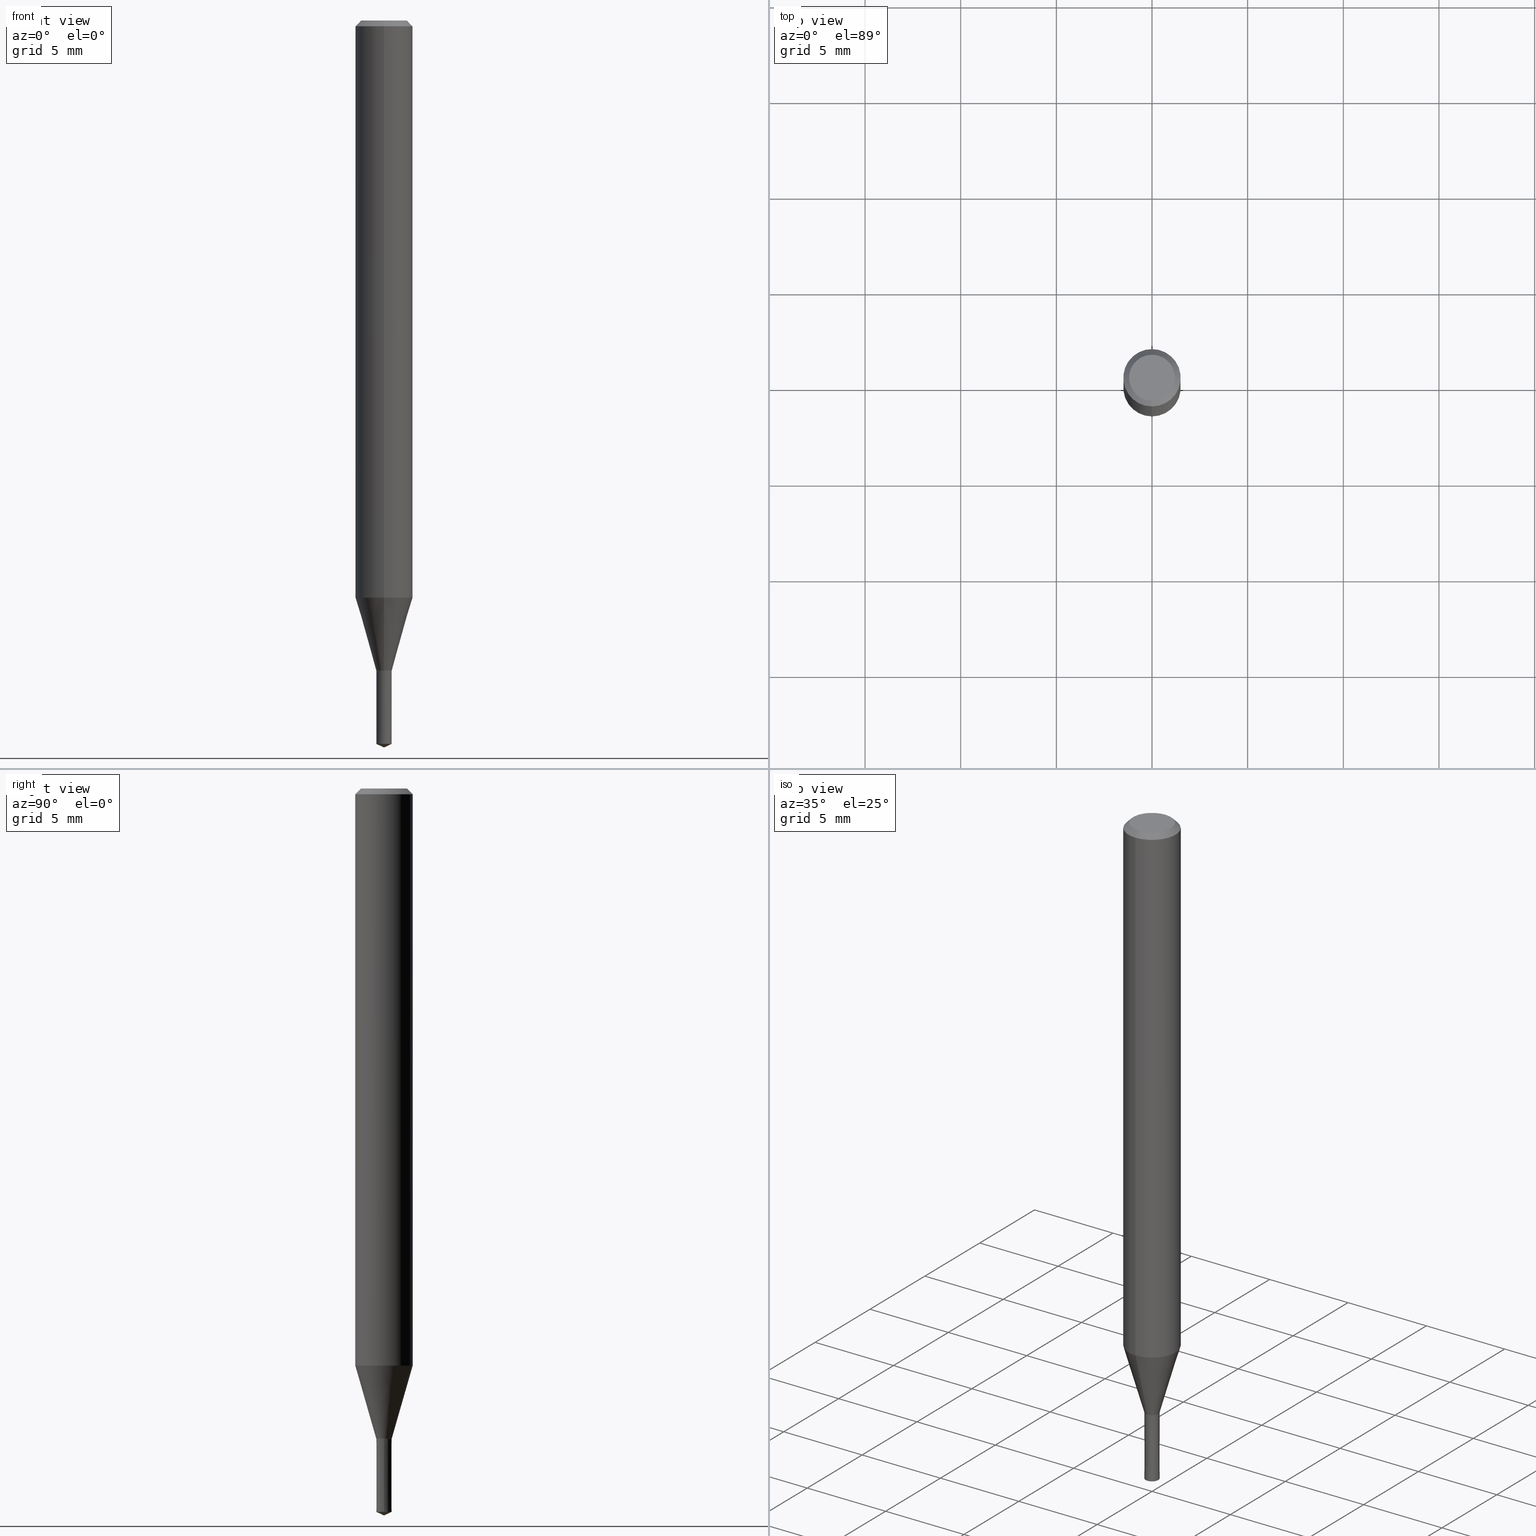
[diagram: canonical four-view strip — front | top / right | iso, engineering-drawing reading convention]
A machine part, canonical four-view strip (front | top / right | iso — engineering-drawing reading convention). The complete STEP part file that produces these views, byte-faithful:
ISO-10303-21;
HEADER;
FILE_DESCRIPTION(('no description'),'unknown implementation level');
FILE_NAME('UTDSX2080-040-Huellk.stp','  ',('CIMSOURCE GmbH'),('CADClick - KiM GmbH - www.kimweb.de'),'unknown preprocess','ACIS','unknown authorization');
FILE_SCHEMA(('automotive_design'));
ENDSEC;
DATA;
#1=MECHANICAL_DESIGN_GEOMETRIC_PRESENTATION_REPRESENTATION(' ',(#14,#15,#16,#17,#18,#19,#20,#21,#22,#23,#24,#25,#26,#27,#28,#29,#30,#31,#32,#33,#34,#35,#36,#37,#38,#39,#40,#41,#42,#43,#44,#45,#46,#47,#48,#49,#50,#51,#52,#53,#54,#55,#56,#57,#58,#59,#60,#61,#62,#63,#64,#65,#66,#67,#68,#69,#70,#71),#10);
#2=PRODUCT_DEFINITION_CONTEXT('',#72,'design');
#3=APPLICATION_PROTOCOL_DEFINITION('INTERNATIONAL STANDARD','automotive_design',1994,#72);
#4=PRODUCT_CATEGORY_RELATIONSHIP('NONE','NONE',#73,#74);
#5=SHAPE_DEFINITION_REPRESENTATION(#75,#76);
#6=PRODUCT_DEFINITION_CONTEXT('',#77,'design');
#7=APPLICATION_PROTOCOL_DEFINITION('INTERNATIONAL STANDARD','automotive_design',1994,#77);
#8=PRODUCT_CATEGORY_RELATIONSHIP('NONE','NONE',#78,#79);
#9=SHAPE_DEFINITION_REPRESENTATION(#80,#81);
#10= (GEOMETRIC_REPRESENTATION_CONTEXT(3)GLOBAL_UNCERTAINTY_ASSIGNED_CONTEXT((#84))GLOBAL_UNIT_ASSIGNED_CONTEXT((#86,#87,#88))REPRESENTATION_CONTEXT('NONE','WORKSPACE'));
#14=STYLED_ITEM('',(#90),#91);
#15=STYLED_ITEM('',(#92),#93);
#16=STYLED_ITEM('',(#94),#95);
#17=STYLED_ITEM('',(#96),#97);
#18=STYLED_ITEM('',(#98),#99);
#19=STYLED_ITEM('',(#100),#101);
#20=STYLED_ITEM('',(#102),#103);
#21=STYLED_ITEM('',(#104),#105);
#22=STYLED_ITEM('',(#106),#107);
#23=STYLED_ITEM('',(#108),#109);
#24=STYLED_ITEM('',(#110),#111);
#25=STYLED_ITEM('',(#112),#113);
#26=STYLED_ITEM('',(#114),#115);
#27=STYLED_ITEM('',(#116),#117);
#28=STYLED_ITEM('',(#118),#119);
#29=STYLED_ITEM('',(#120),#121);
#30=STYLED_ITEM('',(#122),#123);
#31=STYLED_ITEM('',(#124),#125);
#32=STYLED_ITEM('',(#126),#127);
#33=STYLED_ITEM('',(#128),#129);
#34=STYLED_ITEM('',(#130),#131);
#35=STYLED_ITEM('',(#132),#133);
#36=STYLED_ITEM('',(#134),#135);
#37=STYLED_ITEM('',(#136),#137);
#38=STYLED_ITEM('',(#138),#139);
#39=STYLED_ITEM('',(#140),#141);
#40=STYLED_ITEM('',(#142),#143);
#41=STYLED_ITEM('',(#144),#145);
#42=STYLED_ITEM('',(#146),#147);
#43=STYLED_ITEM('',(#148),#149);
#44=STYLED_ITEM('',(#150),#151);
#45=STYLED_ITEM('',(#152),#153);
#46=STYLED_ITEM('',(#154),#155);
#47=STYLED_ITEM('',(#156),#157);
#48=STYLED_ITEM('',(#158),#159);
#49=STYLED_ITEM('',(#160),#161);
#50=STYLED_ITEM('',(#162),#163);
#51=STYLED_ITEM('',(#164),#165);
#52=STYLED_ITEM('',(#166),#167);
#53=STYLED_ITEM('',(#168),#169);
#54=STYLED_ITEM('',(#170),#171);
#55=STYLED_ITEM('',(#172),#173);
#56=STYLED_ITEM('',(#174),#175);
#57=STYLED_ITEM('',(#176),#177);
#58=STYLED_ITEM('',(#178),#179);
#59=STYLED_ITEM('',(#180),#181);
#60=STYLED_ITEM('',(#182),#183);
#61=STYLED_ITEM('',(#184),#185);
#62=STYLED_ITEM('',(#186),#187);
#63=STYLED_ITEM('',(#188),#189);
#64=STYLED_ITEM('',(#190),#191);
#65=STYLED_ITEM('',(#192),#193);
#66=STYLED_ITEM('',(#194),#195);
#67=STYLED_ITEM('',(#196),#197);
#68=STYLED_ITEM('',(#198),#199);
#69=STYLED_ITEM('',(#200),#201);
#70=STYLED_ITEM('',(#202),#203);
#71=STYLED_ITEM('',(#204),#205);
#72=APPLICATION_CONTEXT(' ');
#73=PRODUCT_CATEGORY('part','NONE');
#74=PRODUCT_RELATED_PRODUCT_CATEGORY('detail',' ',(#206));
#75=PRODUCT_DEFINITION_SHAPE('NONE','NONE',#207);
#76=ADVANCED_BREP_SHAPE_REPRESENTATION('1',(#161,#208),#10);
#77=APPLICATION_CONTEXT(' ');
#78=PRODUCT_CATEGORY('part','NONE');
#79=PRODUCT_RELATED_PRODUCT_CATEGORY('detail',' ',(#209));
#80=PRODUCT_DEFINITION_SHAPE('NONE','NONE',#210);
#81=ADVANCED_BREP_SHAPE_REPRESENTATION('2',(#189,#211),#10);
#84=UNCERTAINTY_MEASURE_WITH_UNIT(LENGTH_MEASURE(1.0E-006),#86,'','');
#86= (CONVERSION_BASED_UNIT('MILLIMETRE',#214)LENGTH_UNIT()NAMED_UNIT(#217));
#87= (NAMED_UNIT(#219)PLANE_ANGLE_UNIT()SI_UNIT($,.RADIAN.));
#88= (NAMED_UNIT(#219)SOLID_ANGLE_UNIT()SI_UNIT($,.STERADIAN.));
#90=PRESENTATION_STYLE_ASSIGNMENT((#225));
#91=VERTEX_POINT('',#226);
#92=PRESENTATION_STYLE_ASSIGNMENT((#227));
#93=EDGE_CURVE('',#143,#147,#228,.T.);
#94=PRESENTATION_STYLE_ASSIGNMENT((#229));
#95=VERTEX_POINT('',#230);
#96=PRESENTATION_STYLE_ASSIGNMENT((#231));
#97=ADVANCED_FACE('',(#232),#233,.T.);
#98=PRESENTATION_STYLE_ASSIGNMENT((#234));
#99=EDGE_CURVE('',#147,#143,#235,.T.);
#100=PRESENTATION_STYLE_ASSIGNMENT((#236));
#101=EDGE_CURVE('',#91,#127,#237,.T.);
#102=PRESENTATION_STYLE_ASSIGNMENT((#238));
#103=EDGE_CURVE('',#151,#95,#239,.T.);
#104=PRESENTATION_STYLE_ASSIGNMENT((#240));
#105=VERTEX_POINT('',#241);
#106=PRESENTATION_STYLE_ASSIGNMENT((#242));
#107=EDGE_CURVE('',#105,#171,#243,.T.);
#108=PRESENTATION_STYLE_ASSIGNMENT((#244));
#109=EDGE_CURVE('',#91,#201,#245,.T.);
#110=PRESENTATION_STYLE_ASSIGNMENT((#246));
#111=EDGE_CURVE('',#115,#155,#247,.T.);
#112=PRESENTATION_STYLE_ASSIGNMENT((#248));
#113=ADVANCED_FACE('',(#249),#250,.T.);
#114=PRESENTATION_STYLE_ASSIGNMENT((#251));
#115=VERTEX_POINT('',#252);
#116=PRESENTATION_STYLE_ASSIGNMENT((#253));
#117=EDGE_CURVE('',#151,#171,#254,.T.);
#118=PRESENTATION_STYLE_ASSIGNMENT((#255));
#119=VERTEX_POINT('',#256);
#120=PRESENTATION_STYLE_ASSIGNMENT((#257));
#121=ADVANCED_FACE('',(#258),#259,.T.);
#122=PRESENTATION_STYLE_ASSIGNMENT((#260));
#123=EDGE_CURVE('',#119,#181,#261,.T.);
#124=PRESENTATION_STYLE_ASSIGNMENT((#262));
#125=ADVANCED_FACE('',(#263),#264,.T.);
#126=PRESENTATION_STYLE_ASSIGNMENT((#265));
#127=VERTEX_POINT('',#266);
#128=PRESENTATION_STYLE_ASSIGNMENT((#267));
#129=ADVANCED_FACE('',(#268),#269,.T.);
#130=PRESENTATION_STYLE_ASSIGNMENT((#270));
#131=EDGE_CURVE('',#105,#95,#271,.T.);
#132=PRESENTATION_STYLE_ASSIGNMENT((#272));
#133=EDGE_CURVE('',#95,#151,#273,.T.);
#134=PRESENTATION_STYLE_ASSIGNMENT((#274));
#135=EDGE_CURVE('',#175,#115,#275,.T.);
#136=PRESENTATION_STYLE_ASSIGNMENT((#276));
#137=EDGE_CURVE('',#201,#91,#277,.T.);
#138=PRESENTATION_STYLE_ASSIGNMENT((#278));
#139=ADVANCED_FACE('',(#279),#280,.T.);
#140=PRESENTATION_STYLE_ASSIGNMENT((#281));
#141=EDGE_CURVE('',#201,#105,#282,.T.);
#142=PRESENTATION_STYLE_ASSIGNMENT((#283));
#143=VERTEX_POINT('',#284);
#144=PRESENTATION_STYLE_ASSIGNMENT((#285));
#145=EDGE_CURVE('',#115,#175,#286,.T.);
#146=PRESENTATION_STYLE_ASSIGNMENT((#287));
#147=VERTEX_POINT('',#288);
#148=PRESENTATION_STYLE_ASSIGNMENT((#289));
#149=EDGE_CURVE('',#147,#115,#290,.T.);
#150=PRESENTATION_STYLE_ASSIGNMENT((#291));
#151=VERTEX_POINT('',#292);
#152=PRESENTATION_STYLE_ASSIGNMENT((#293));
#153=ADVANCED_FACE('',(#294),#295,.T.);
#154=PRESENTATION_STYLE_ASSIGNMENT((#296));
#155=VERTEX_POINT('',#297);
#156=PRESENTATION_STYLE_ASSIGNMENT((#298));
#157=EDGE_CURVE('',#167,#201,#299,.T.);
#158=PRESENTATION_STYLE_ASSIGNMENT((#300));
#159=ADVANCED_FACE('',(#301),#302,.T.);
#160=PRESENTATION_STYLE_ASSIGNMENT((#303));
#161=MANIFOLD_SOLID_BREP('1',#304);
#162=PRESENTATION_STYLE_ASSIGNMENT((#305));
#163=ADVANCED_FACE('',(#306),#307,.T.);
#164=PRESENTATION_STYLE_ASSIGNMENT((#308));
#165=EDGE_CURVE('',#175,#143,#309,.T.);
#166=PRESENTATION_STYLE_ASSIGNMENT((#310));
#167=VERTEX_POINT('',#311);
#168=PRESENTATION_STYLE_ASSIGNMENT((#312));
#169=ADVANCED_FACE('',(#313),#314,.T.);
#170=PRESENTATION_STYLE_ASSIGNMENT((#315));
#171=VERTEX_POINT('',#316);
#172=PRESENTATION_STYLE_ASSIGNMENT((#317));
#173=EDGE_CURVE('',#171,#105,#318,.T.);
#174=PRESENTATION_STYLE_ASSIGNMENT((#319));
#175=VERTEX_POINT('',#320);
#176=PRESENTATION_STYLE_ASSIGNMENT((#321));
#177=EDGE_CURVE('',#127,#167,#322,.T.);
#178=PRESENTATION_STYLE_ASSIGNMENT((#323));
#179=ADVANCED_FACE('',(#324),#325,.T.);
#180=PRESENTATION_STYLE_ASSIGNMENT((#326));
#181=VERTEX_POINT('',#327);
#182=PRESENTATION_STYLE_ASSIGNMENT((#328));
#183=EDGE_CURVE('',#181,#119,#329,.T.);
#184=PRESENTATION_STYLE_ASSIGNMENT((#330));
#185=EDGE_CURVE('',#181,#167,#331,.T.);
#186=PRESENTATION_STYLE_ASSIGNMENT((#332));
#187=EDGE_CURVE('',#171,#91,#333,.T.);
#188=PRESENTATION_STYLE_ASSIGNMENT((#334));
#189=MANIFOLD_SOLID_BREP('2',#335);
#190=PRESENTATION_STYLE_ASSIGNMENT((#336));
#191=ADVANCED_FACE('',(#337),#338,.T.);
#192=PRESENTATION_STYLE_ASSIGNMENT((#339));
#193=ADVANCED_FACE('',(#340),#341,.T.);
#194=PRESENTATION_STYLE_ASSIGNMENT((#342));
#195=EDGE_CURVE('',#127,#119,#343,.T.);
#196=PRESENTATION_STYLE_ASSIGNMENT((#344));
#197=EDGE_CURVE('',#155,#175,#345,.T.);
#198=PRESENTATION_STYLE_ASSIGNMENT((#346));
#199=EDGE_CURVE('',#167,#127,#347,.T.);
#200=PRESENTATION_STYLE_ASSIGNMENT((#348));
#201=VERTEX_POINT('',#349);
#202=PRESENTATION_STYLE_ASSIGNMENT((#350));
#203=ADVANCED_FACE('',(#351),#352,.T.);
#204=PRESENTATION_STYLE_ASSIGNMENT((#353));
#205=ADVANCED_FACE('',(#354),#355,.T.);
#206=PRODUCT('1','1','PART-1-DESC',(#356));
#207=PRODUCT_DEFINITION('NONE','NONE',#357,#2);
#208=AXIS2_PLACEMENT_3D('',#358,#359,#360);
#209=PRODUCT('2','2','PART-2-DESC',(#361));
#210=PRODUCT_DEFINITION('NONE','NONE',#362,#6);
#211=AXIS2_PLACEMENT_3D('',#363,#364,#365);
#214=LENGTH_MEASURE_WITH_UNIT(LENGTH_MEASURE(1.0),#366);
#217=DIMENSIONAL_EXPONENTS(1.0,0.0,0.0,0.0,0.0,0.0,0.0);
#219=DIMENSIONAL_EXPONENTS(0.0,0.0,0.0,0.0,0.0,0.0,0.0);
#225=POINT_STYLE(' ',#367,POSITIVE_LENGTH_MEASURE(1.0E-006),#368);
#226=CARTESIAN_POINT('',(1.83690953073357E-016,-1.5,-30.164));
#227=CURVE_STYLE('',#369,POSITIVE_LENGTH_MEASURE(1.0E-006),#370);
#228=CIRCLE('',#371,0.401);
#229=POINT_STYLE(' ',#372,POSITIVE_LENGTH_MEASURE(1.0E-006),#373);
#230=CARTESIAN_POINT('',(0.0,0.4005,-34.0));
#231=SURFACE_STYLE_USAGE(.BOTH.,#374);
#232=FACE_OUTER_BOUND('',#375,.T.);
#233=CONICAL_SURFACE('',#376,0.2,1.13446402049478);
#234=CURVE_STYLE('',#377,POSITIVE_LENGTH_MEASURE(1.0E-006),#378);
#235=CIRCLE('',#379,0.401);
#236=CURVE_STYLE('',#380,POSITIVE_LENGTH_MEASURE(1.0E-006),#381);
#237=LINE('',#382,#383);
#238=CURVE_STYLE('',#384,POSITIVE_LENGTH_MEASURE(1.0E-006),#385);
#239=CIRCLE('',#386,0.4005);
#240=POINT_STYLE(' ',#387,POSITIVE_LENGTH_MEASURE(1.0E-006),#388);
#241=CARTESIAN_POINT('',(0.0,0.4,-33.9991339745962));
#242=CURVE_STYLE('',#389,POSITIVE_LENGTH_MEASURE(1.0E-006),#390);
#243=CIRCLE('',#391,0.4);
#244=CURVE_STYLE('',#392,POSITIVE_LENGTH_MEASURE(1.0E-006),#393);
#245=CIRCLE('',#394,1.5);
#246=CURVE_STYLE('',#395,POSITIVE_LENGTH_MEASURE(1.0E-006),#396);
#247=LINE('',#397,#398);
#248=SURFACE_STYLE_USAGE(.BOTH.,#399);
#249=FACE_OUTER_BOUND('',#400,.T.);
#250=PLANE('',#401);
#251=POINT_STYLE(' ',#402,POSITIVE_LENGTH_MEASURE(1.0E-006),#403);
#252=CARTESIAN_POINT('',(-0.4,0.0,-37.81347694));
#253=CURVE_STYLE('',#404,POSITIVE_LENGTH_MEASURE(1.0E-006),#405);
#254=LINE('',#406,#407);
#255=POINT_STYLE(' ',#408,POSITIVE_LENGTH_MEASURE(1.0E-006),#409);
#256=CARTESIAN_POINT('',(1.46952762458685E-016,-1.2,0.0));
#257=SURFACE_STYLE_USAGE(.BOTH.,#410);
#258=FACE_OUTER_BOUND('',#411,.T.);
#259=CONICAL_SURFACE('',#412,0.2,1.13446402049478);
#260=CURVE_STYLE('',#413,POSITIVE_LENGTH_MEASURE(1.0E-006),#414);
#261=CIRCLE('',#415,1.2);
#262=SURFACE_STYLE_USAGE(.BOTH.,#416);
#263=FACE_OUTER_BOUND('',#417,.T.);
#264=PLANE('',#418);
#265=POINT_STYLE(' ',#419,POSITIVE_LENGTH_MEASURE(1.0E-006),#420);
#266=CARTESIAN_POINT('',(1.83690953073357E-016,-1.5,-0.300000000000001));
#267=SURFACE_STYLE_USAGE(.BOTH.,#421);
#268=FACE_OUTER_BOUND('',#422,.T.);
#269=CONICAL_SURFACE('',#423,0.40025,0.523598775598408);
#270=CURVE_STYLE('',#424,POSITIVE_LENGTH_MEASURE(1.0E-006),#425);
#271=LINE('',#426,#427);
#272=CURVE_STYLE('',#428,POSITIVE_LENGTH_MEASURE(1.0E-006),#429);
#273=CIRCLE('',#430,0.4005);
#274=CURVE_STYLE('',#431,POSITIVE_LENGTH_MEASURE(1.0E-006),#432);
#275=CIRCLE('',#433,0.4);
#276=CURVE_STYLE('',#434,POSITIVE_LENGTH_MEASURE(1.0E-006),#435);
#277=CIRCLE('',#436,1.5);
#278=SURFACE_STYLE_USAGE(.BOTH.,#437);
#279=FACE_OUTER_BOUND('',#438,.T.);
#280=CYLINDRICAL_SURFACE('',#439,1.5);
#281=CURVE_STYLE('',#440,POSITIVE_LENGTH_MEASURE(1.0E-006),#441);
#282=LINE('',#442,#443);
#283=POINT_STYLE(' ',#444,POSITIVE_LENGTH_MEASURE(1.0E-006),#445);
#284=CARTESIAN_POINT('',(0.401,4.91067147882773E-017,-34.0));
#285=CURVE_STYLE('',#446,POSITIVE_LENGTH_MEASURE(1.0E-006),#447);
#286=CIRCLE('',#448,0.4);
#287=POINT_STYLE(' ',#449,POSITIVE_LENGTH_MEASURE(1.0E-006),#450);
#288=CARTESIAN_POINT('',(-0.401,0.0,-34.0));
#289=CURVE_STYLE('',#451,POSITIVE_LENGTH_MEASURE(1.0E-006),#452);
#290=LINE('',#453,#454);
#291=POINT_STYLE(' ',#455,POSITIVE_LENGTH_MEASURE(1.0E-006),#456);
#292=CARTESIAN_POINT('',(4.90454844705862E-017,-0.4005,-34.0));
#293=SURFACE_STYLE_USAGE(.BOTH.,#457);
#294=FACE_OUTER_BOUND('',#458,.T.);
#295=CONICAL_SURFACE('',#459,0.40025,0.523598775598408);
#296=POINT_STYLE(' ',#460,POSITIVE_LENGTH_MEASURE(1.0E-006),#461);
#297=CARTESIAN_POINT('',(0.0,0.0,-38.0));
#298=CURVE_STYLE('',#462,POSITIVE_LENGTH_MEASURE(1.0E-006),#463);
#299=LINE('',#464,#465);
#300=SURFACE_STYLE_USAGE(.BOTH.,#466);
#301=FACE_OUTER_BOUND('',#467,.T.);
#302=PLANE('',#468);
#303=SURFACE_STYLE_USAGE(.BOTH.,#469);
#304=CLOSED_SHELL('',(#153,#203,#139,#169,#125,#193,#179,#163,#129,#159));
#305=SURFACE_STYLE_USAGE(.BOTH.,#470);
#306=FACE_OUTER_BOUND('',#471,.T.);
#307=CONICAL_SURFACE('',#472,0.95,0.279323280297878);
#308=CURVE_STYLE('',#473,POSITIVE_LENGTH_MEASURE(1.0E-006),#474);
#309=LINE('',#475,#476);
#310=POINT_STYLE(' ',#477,POSITIVE_LENGTH_MEASURE(1.0E-006),#478);
#311=CARTESIAN_POINT('',(0.0,1.5,-0.300000000000001));
#312=SURFACE_STYLE_USAGE(.BOTH.,#479);
#313=FACE_OUTER_BOUND('',#480,.T.);
#314=CONICAL_SURFACE('',#481,1.35,0.785398163397447);
#315=POINT_STYLE(' ',#482,POSITIVE_LENGTH_MEASURE(1.0E-006),#483);
#316=CARTESIAN_POINT('',(4.89842541528951E-017,-0.4,-33.9991339745962));
#317=CURVE_STYLE('',#484,POSITIVE_LENGTH_MEASURE(1.0E-006),#485);
#318=CIRCLE('',#486,0.4);
#319=POINT_STYLE(' ',#487,POSITIVE_LENGTH_MEASURE(1.0E-006),#488);
#320=CARTESIAN_POINT('',(0.4,4.89842541528951E-017,-37.81347694));
#321=CURVE_STYLE('',#489,POSITIVE_LENGTH_MEASURE(1.0E-006),#490);
#322=CIRCLE('',#491,1.5);
#323=SURFACE_STYLE_USAGE(.BOTH.,#492);
#324=FACE_OUTER_BOUND('',#493,.T.);
#325=CYLINDRICAL_SURFACE('',#494,1.5);
#326=POINT_STYLE(' ',#495,POSITIVE_LENGTH_MEASURE(1.0E-006),#496);
#327=CARTESIAN_POINT('',(0.0,1.2,0.0));
#328=CURVE_STYLE('',#497,POSITIVE_LENGTH_MEASURE(1.0E-006),#498);
#329=CIRCLE('',#499,1.2);
#330=CURVE_STYLE('',#500,POSITIVE_LENGTH_MEASURE(1.0E-006),#501);
#331=LINE('',#502,#503);
#332=CURVE_STYLE('',#504,POSITIVE_LENGTH_MEASURE(1.0E-006),#505);
#333=LINE('',#506,#507);
#334=SURFACE_STYLE_USAGE(.BOTH.,#508);
#335=CLOSED_SHELL('',(#97,#191,#113,#205,#121));
#336=SURFACE_STYLE_USAGE(.BOTH.,#509);
#337=FACE_OUTER_BOUND('',#510,.T.);
#338=CONICAL_SURFACE('',#511,0.4005,0.000262227880963362);
#339=SURFACE_STYLE_USAGE(.BOTH.,#512);
#340=FACE_OUTER_BOUND('',#513,.T.);
#341=CONICAL_SURFACE('',#514,1.35,0.785398163397447);
#342=CURVE_STYLE('',#515,POSITIVE_LENGTH_MEASURE(1.0E-006),#516);
#343=LINE('',#517,#518);
#344=CURVE_STYLE('',#519,POSITIVE_LENGTH_MEASURE(1.0E-006),#520);
#345=LINE('',#521,#522);
#346=CURVE_STYLE('',#523,POSITIVE_LENGTH_MEASURE(1.0E-006),#524);
#347=CIRCLE('',#525,1.5);
#348=POINT_STYLE(' ',#526,POSITIVE_LENGTH_MEASURE(1.0E-006),#527);
#349=CARTESIAN_POINT('',(0.0,1.5,-30.164));
#350=SURFACE_STYLE_USAGE(.BOTH.,#528);
#351=FACE_OUTER_BOUND('',#529,.T.);
#352=CONICAL_SURFACE('',#530,0.95,0.279323280297878);
#353=SURFACE_STYLE_USAGE(.BOTH.,#531);
#354=FACE_OUTER_BOUND('',#532,.T.);
#355=CONICAL_SURFACE('',#533,0.4005,0.000262227880963362);
#356=PRODUCT_CONTEXT('',#72,'mechanical');
#357=PRODUCT_DEFINITION_FORMATION_WITH_SPECIFIED_SOURCE(' ','NONE',#206,.NOT_KNOWN.);
#358=CARTESIAN_POINT('',(0.0,0.0,0.0));
#359=DIRECTION('',(0.0,0.0,1.0));
#360=DIRECTION('',(1.0,0.0,0.0));
#361=PRODUCT_CONTEXT('',#77,'mechanical');
#362=PRODUCT_DEFINITION_FORMATION_WITH_SPECIFIED_SOURCE(' ','NONE',#209,.NOT_KNOWN.);
#363=CARTESIAN_POINT('',(0.0,0.0,0.0));
#364=DIRECTION('',(0.0,0.0,1.0));
#365=DIRECTION('',(1.0,0.0,0.0));
#366= (NAMED_UNIT(#217)LENGTH_UNIT()SI_UNIT(.MILLI.,.METRE.));
#367=PRE_DEFINED_MARKER('');
#368=COLOUR_RGB('',0.498039215803146,0.498039215803146,0.498039215803146);
#369=DRAUGHTING_PRE_DEFINED_CURVE_FONT('continuous');
#370=COLOUR_RGB('',0.800000011920929,0.800000011920929,0.800000011920929);
#371=AXIS2_PLACEMENT_3D('',#535,#536,#537);
#372=PRE_DEFINED_MARKER('');
#373=COLOUR_RGB('',0.498039215803146,0.498039215803146,0.498039215803146);
#374=SURFACE_SIDE_STYLE('',(#538));
#375=EDGE_LOOP('',(#539,#540,#541));
#376=AXIS2_PLACEMENT_3D('',#542,#543,#544);
#377=DRAUGHTING_PRE_DEFINED_CURVE_FONT('continuous');
#378=COLOUR_RGB('',0.800000011920929,0.800000011920929,0.800000011920929);
#379=AXIS2_PLACEMENT_3D('',#545,#546,#547);
#380=DRAUGHTING_PRE_DEFINED_CURVE_FONT('continuous');
#381=COLOUR_RGB('',0.498039215803146,0.498039215803146,0.498039215803146);
#382=CARTESIAN_POINT('',(1.83690953073357E-016,-1.5,-15.232));
#383=VECTOR('',#548,1.0);
#384=DRAUGHTING_PRE_DEFINED_CURVE_FONT('continuous');
#385=COLOUR_RGB('',0.498039215803146,0.498039215803146,0.498039215803146);
#386=AXIS2_PLACEMENT_3D('',#549,#550,#551);
#387=PRE_DEFINED_MARKER('');
#388=COLOUR_RGB('',0.498039215803146,0.498039215803146,0.498039215803146);
#389=DRAUGHTING_PRE_DEFINED_CURVE_FONT('continuous');
#390=COLOUR_RGB('',0.498039215803146,0.498039215803146,0.498039215803146);
#391=AXIS2_PLACEMENT_3D('',#552,#553,#554);
#392=DRAUGHTING_PRE_DEFINED_CURVE_FONT('continuous');
#393=COLOUR_RGB('',0.498039215803146,0.498039215803146,0.498039215803146);
#394=AXIS2_PLACEMENT_3D('',#555,#556,#557);
#395=DRAUGHTING_PRE_DEFINED_CURVE_FONT('continuous');
#396=COLOUR_RGB('',0.800000011920929,0.800000011920929,0.800000011920929);
#397=CARTESIAN_POINT('',(-0.2,-2.44921270764476E-017,-37.90673847));
#398=VECTOR('',#558,1.0);
#399=SURFACE_SIDE_STYLE('',(#559));
#400=EDGE_LOOP('',(#560,#561));
#401=AXIS2_PLACEMENT_3D('',#562,#563,#564);
#402=PRE_DEFINED_MARKER('');
#403=COLOUR_RGB('',0.800000011920929,0.800000011920929,0.800000011920929);
#404=DRAUGHTING_PRE_DEFINED_CURVE_FONT('continuous');
#405=COLOUR_RGB('',0.498039215803146,0.498039215803146,0.498039215803146);
#406=CARTESIAN_POINT('',(4.90148693117407E-017,-0.40025,-33.9995669872981));
#407=VECTOR('',#565,1.0);
#408=PRE_DEFINED_MARKER('');
#409=COLOUR_RGB('',0.498039215803146,0.498039215803146,0.498039215803146);
#410=SURFACE_SIDE_STYLE('',(#566));
#411=EDGE_LOOP('',(#567,#568,#569));
#412=AXIS2_PLACEMENT_3D('',#570,#571,#572);
#413=DRAUGHTING_PRE_DEFINED_CURVE_FONT('continuous');
#414=COLOUR_RGB('',0.498039215803146,0.498039215803146,0.498039215803146);
#415=AXIS2_PLACEMENT_3D('',#573,#574,#575);
#416=SURFACE_SIDE_STYLE('',(#576));
#417=EDGE_LOOP('',(#577,#578));
#418=AXIS2_PLACEMENT_3D('',#579,#580,#581);
#419=PRE_DEFINED_MARKER('');
#420=COLOUR_RGB('',0.498039215803146,0.498039215803146,0.498039215803146);
#421=SURFACE_SIDE_STYLE('',(#582));
#422=EDGE_LOOP('',(#583,#584,#585,#586));
#423=AXIS2_PLACEMENT_3D('',#587,#588,#589);
#424=DRAUGHTING_PRE_DEFINED_CURVE_FONT('continuous');
#425=COLOUR_RGB('',0.498039215803146,0.498039215803146,0.498039215803146);
#426=CARTESIAN_POINT('',(-4.90148693117407E-017,0.40025,-33.9995669872981));
#427=VECTOR('',#590,1.0);
#428=DRAUGHTING_PRE_DEFINED_CURVE_FONT('continuous');
#429=COLOUR_RGB('',0.498039215803146,0.498039215803146,0.498039215803146);
#430=AXIS2_PLACEMENT_3D('',#591,#592,#593);
#431=DRAUGHTING_PRE_DEFINED_CURVE_FONT('continuous');
#432=COLOUR_RGB('',0.800000011920929,0.800000011920929,0.800000011920929);
#433=AXIS2_PLACEMENT_3D('',#594,#595,#596);
#434=DRAUGHTING_PRE_DEFINED_CURVE_FONT('continuous');
#435=COLOUR_RGB('',0.498039215803146,0.498039215803146,0.498039215803146);
#436=AXIS2_PLACEMENT_3D('',#597,#598,#599);
#437=SURFACE_SIDE_STYLE('',(#600));
#438=EDGE_LOOP('',(#601,#602,#603,#604));
#439=AXIS2_PLACEMENT_3D('',#605,#606,#607);
#440=DRAUGHTING_PRE_DEFINED_CURVE_FONT('continuous');
#441=COLOUR_RGB('',0.498039215803146,0.498039215803146,0.498039215803146);
#442=CARTESIAN_POINT('',(-1.16337603613126E-016,0.95,-32.0815669872981));
#443=VECTOR('',#608,1.0);
#444=PRE_DEFINED_MARKER('');
#445=COLOUR_RGB('',0.800000011920929,0.800000011920929,0.800000011920929);
#446=DRAUGHTING_PRE_DEFINED_CURVE_FONT('continuous');
#447=COLOUR_RGB('',0.800000011920929,0.800000011920929,0.800000011920929);
#448=AXIS2_PLACEMENT_3D('',#609,#610,#611);
#449=PRE_DEFINED_MARKER('');
#450=COLOUR_RGB('',0.800000011920929,0.800000011920929,0.800000011920929);
#451=DRAUGHTING_PRE_DEFINED_CURVE_FONT('continuous');
#452=COLOUR_RGB('',0.800000011920929,0.800000011920929,0.800000011920929);
#453=CARTESIAN_POINT('',(-0.4005,-4.90454844705862E-017,-35.90673847));
#454=VECTOR('',#612,1.0);
#455=PRE_DEFINED_MARKER('');
#456=COLOUR_RGB('',0.498039215803146,0.498039215803146,0.498039215803146);
#457=SURFACE_SIDE_STYLE('',(#613));
#458=EDGE_LOOP('',(#614,#615,#616,#617));
#459=AXIS2_PLACEMENT_3D('',#618,#619,#620);
#460=PRE_DEFINED_MARKER('');
#461=COLOUR_RGB('',0.800000011920929,0.800000011920929,0.800000011920929);
#462=DRAUGHTING_PRE_DEFINED_CURVE_FONT('continuous');
#463=COLOUR_RGB('',0.498039215803146,0.498039215803146,0.498039215803146);
#464=CARTESIAN_POINT('',(-1.83690953073357E-016,1.5,-15.232));
#465=VECTOR('',#621,1.0);
#466=SURFACE_SIDE_STYLE('',(#622));
#467=EDGE_LOOP('',(#623,#624));
#468=AXIS2_PLACEMENT_3D('',#625,#626,#627);
#469=SURFACE_SIDE_STYLE('',(#628));
#470=SURFACE_SIDE_STYLE('',(#629));
#471=EDGE_LOOP('',(#630,#631,#632,#633));
#472=AXIS2_PLACEMENT_3D('',#634,#635,#636);
#473=DRAUGHTING_PRE_DEFINED_CURVE_FONT('continuous');
#474=COLOUR_RGB('',0.800000011920929,0.800000011920929,0.800000011920929);
#475=CARTESIAN_POINT('',(0.4005,4.90454844705862E-017,-35.90673847));
#476=VECTOR('',#637,1.0);
#477=PRE_DEFINED_MARKER('');
#478=COLOUR_RGB('',0.498039215803146,0.498039215803146,0.498039215803146);
#479=SURFACE_SIDE_STYLE('',(#638));
#480=EDGE_LOOP('',(#639,#640,#641,#642));
#481=AXIS2_PLACEMENT_3D('',#643,#644,#645);
#482=PRE_DEFINED_MARKER('');
#483=COLOUR_RGB('',0.498039215803146,0.498039215803146,0.498039215803146);
#484=DRAUGHTING_PRE_DEFINED_CURVE_FONT('continuous');
#485=COLOUR_RGB('',0.498039215803146,0.498039215803146,0.498039215803146);
#486=AXIS2_PLACEMENT_3D('',#646,#647,#648);
#487=PRE_DEFINED_MARKER('');
#488=COLOUR_RGB('',0.800000011920929,0.800000011920929,0.800000011920929);
#489=DRAUGHTING_PRE_DEFINED_CURVE_FONT('continuous');
#490=COLOUR_RGB('',0.498039215803146,0.498039215803146,0.498039215803146);
#491=AXIS2_PLACEMENT_3D('',#649,#650,#651);
#492=SURFACE_SIDE_STYLE('',(#652));
#493=EDGE_LOOP('',(#653,#654,#655,#656));
#494=AXIS2_PLACEMENT_3D('',#657,#658,#659);
#495=PRE_DEFINED_MARKER('');
#496=COLOUR_RGB('',0.498039215803146,0.498039215803146,0.498039215803146);
#497=DRAUGHTING_PRE_DEFINED_CURVE_FONT('continuous');
#498=COLOUR_RGB('',0.498039215803146,0.498039215803146,0.498039215803146);
#499=AXIS2_PLACEMENT_3D('',#660,#661,#662);
#500=DRAUGHTING_PRE_DEFINED_CURVE_FONT('continuous');
#501=COLOUR_RGB('',0.498039215803146,0.498039215803146,0.498039215803146);
#502=CARTESIAN_POINT('',(-1.65321857766021E-016,1.35,-0.150000000000002));
#503=VECTOR('',#663,1.0);
#504=DRAUGHTING_PRE_DEFINED_CURVE_FONT('continuous');
#505=COLOUR_RGB('',0.498039215803146,0.498039215803146,0.498039215803146);
#506=CARTESIAN_POINT('',(1.16337603613126E-016,-0.95,-32.0815669872981));
#507=VECTOR('',#664,1.0);
#508=SURFACE_SIDE_STYLE('',(#665));
#509=SURFACE_SIDE_STYLE('',(#666));
#510=EDGE_LOOP('',(#667,#668,#669,#670));
#511=AXIS2_PLACEMENT_3D('',#671,#672,#673);
#512=SURFACE_SIDE_STYLE('',(#674));
#513=EDGE_LOOP('',(#675,#676,#677,#678));
#514=AXIS2_PLACEMENT_3D('',#679,#680,#681);
#515=DRAUGHTING_PRE_DEFINED_CURVE_FONT('continuous');
#516=COLOUR_RGB('',0.498039215803146,0.498039215803146,0.498039215803146);
#517=CARTESIAN_POINT('',(1.65321857766021E-016,-1.35,-0.150000000000002));
#518=VECTOR('',#682,1.0);
#519=DRAUGHTING_PRE_DEFINED_CURVE_FONT('continuous');
#520=COLOUR_RGB('',0.800000011920929,0.800000011920929,0.800000011920929);
#521=CARTESIAN_POINT('',(0.2,2.44921270764475E-017,-37.90673847));
#522=VECTOR('',#683,1.0);
#523=DRAUGHTING_PRE_DEFINED_CURVE_FONT('continuous');
#524=COLOUR_RGB('',0.498039215803146,0.498039215803146,0.498039215803146);
#525=AXIS2_PLACEMENT_3D('',#684,#685,#686);
#526=PRE_DEFINED_MARKER('');
#527=COLOUR_RGB('',0.498039215803146,0.498039215803146,0.498039215803146);
#528=SURFACE_SIDE_STYLE('',(#687));
#529=EDGE_LOOP('',(#688,#689,#690,#691));
#530=AXIS2_PLACEMENT_3D('',#692,#693,#694);
#531=SURFACE_SIDE_STYLE('',(#695));
#532=EDGE_LOOP('',(#696,#697,#698,#699));
#533=AXIS2_PLACEMENT_3D('',#700,#701,#702);
#535=CARTESIAN_POINT('',(0.0,0.0,-34.0));
#536=DIRECTION('',(0.0,0.0,-1.0));
#537=DIRECTION('',(-1.0,0.0,0.0));
#538=SURFACE_STYLE_FILL_AREA(#703);
#539=ORIENTED_EDGE('',*,*,#197,.F.);
#540=ORIENTED_EDGE('',*,*,#111,.F.);
#541=ORIENTED_EDGE('',*,*,#145,.T.);
#542=CARTESIAN_POINT('',(0.0,0.0,-37.90673847));
#543=DIRECTION('',(-0.0,-0.0,1.0));
#544=DIRECTION('',(-1.0,0.0,0.0));
#545=CARTESIAN_POINT('',(0.0,0.0,-34.0));
#546=DIRECTION('',(0.0,0.0,-1.0));
#547=DIRECTION('',(-1.0,0.0,0.0));
#548=DIRECTION('',(-0.0,-0.0,1.0));
#549=CARTESIAN_POINT('',(0.0,0.0,-34.0));
#550=DIRECTION('',(0.0,0.0,-1.0));
#551=DIRECTION('',(0.0,1.0,0.0));
#552=CARTESIAN_POINT('',(0.0,0.0,-33.9991339745962));
#553=DIRECTION('',(0.0,0.0,-1.0));
#554=DIRECTION('',(0.0,1.0,0.0));
#555=CARTESIAN_POINT('',(0.0,0.0,-30.164));
#556=DIRECTION('',(0.0,0.0,-1.0));
#557=DIRECTION('',(0.0,1.0,0.0));
#558=DIRECTION('',(0.906307789867544,1.10987027799051E-016,-0.422618255669828));
#559=SURFACE_STYLE_FILL_AREA(#704);
#560=ORIENTED_EDGE('',*,*,#99,.F.);
#561=ORIENTED_EDGE('',*,*,#93,.F.);
#562=CARTESIAN_POINT('',(-0.2005,0.0,-34.0));
#563=DIRECTION('',(0.0,0.0,1.0));
#564=DIRECTION('',(1.0,0.0,0.0));
#565=DIRECTION('',(-6.12303176911305E-017,0.500000000000095,0.866025403784384));
#566=SURFACE_STYLE_FILL_AREA(#705);
#567=ORIENTED_EDGE('',*,*,#197,.T.);
#568=ORIENTED_EDGE('',*,*,#135,.T.);
#569=ORIENTED_EDGE('',*,*,#111,.T.);
#570=CARTESIAN_POINT('',(0.0,0.0,-37.90673847));
#571=DIRECTION('',(-0.0,-0.0,1.0));
#572=DIRECTION('',(-1.0,0.0,0.0));
#573=CARTESIAN_POINT('',(0.0,0.0,0.0));
#574=DIRECTION('',(0.0,0.0,-1.0));
#575=DIRECTION('',(0.0,1.0,0.0));
#576=SURFACE_STYLE_FILL_AREA(#706);
#577=ORIENTED_EDGE('',*,*,#183,.F.);
#578=ORIENTED_EDGE('',*,*,#123,.F.);
#579=CARTESIAN_POINT('',(0.0,0.6,0.0));
#580=DIRECTION('',(-0.0,0.0,1.0));
#581=DIRECTION('',(0.0,-1.0,0.0));
#582=SURFACE_STYLE_FILL_AREA(#707);
#583=ORIENTED_EDGE('',*,*,#131,.T.);
#584=ORIENTED_EDGE('',*,*,#103,.F.);
#585=ORIENTED_EDGE('',*,*,#117,.T.);
#586=ORIENTED_EDGE('',*,*,#173,.T.);
#587=CARTESIAN_POINT('',(0.0,0.0,-33.9995669872981));
#588=DIRECTION('',(0.0,-0.0,-1.0));
#589=DIRECTION('',(0.0,1.0,0.0));
#590=DIRECTION('',(-6.12303176911305E-017,0.500000000000095,-0.866025403784384));
#591=CARTESIAN_POINT('',(0.0,0.0,-34.0));
#592=DIRECTION('',(0.0,0.0,-1.0));
#593=DIRECTION('',(0.0,1.0,0.0));
#594=CARTESIAN_POINT('',(0.0,0.0,-37.81347694));
#595=DIRECTION('',(0.0,0.0,-1.0));
#596=DIRECTION('',(-1.0,0.0,0.0));
#597=CARTESIAN_POINT('',(0.0,0.0,-30.164));
#598=DIRECTION('',(0.0,0.0,-1.0));
#599=DIRECTION('',(0.0,1.0,0.0));
#600=SURFACE_STYLE_FILL_AREA(#708);
#601=ORIENTED_EDGE('',*,*,#157,.F.);
#602=ORIENTED_EDGE('',*,*,#199,.T.);
#603=ORIENTED_EDGE('',*,*,#101,.F.);
#604=ORIENTED_EDGE('',*,*,#137,.F.);
#605=CARTESIAN_POINT('',(0.0,0.0,-15.232));
#606=DIRECTION('',(-0.0,-0.0,1.0));
#607=DIRECTION('',(0.0,1.0,0.0));
#608=DIRECTION('',(3.37630364420972E-017,-0.275705220185345,-0.961242233551226));
#609=CARTESIAN_POINT('',(0.0,0.0,-37.81347694));
#610=DIRECTION('',(0.0,0.0,-1.0));
#611=DIRECTION('',(-1.0,0.0,0.0));
#612=DIRECTION('',(0.000262227877958079,3.21125925496823E-020,-0.999999965618269));
#613=SURFACE_STYLE_FILL_AREA(#709);
#614=ORIENTED_EDGE('',*,*,#131,.F.);
#615=ORIENTED_EDGE('',*,*,#107,.T.);
#616=ORIENTED_EDGE('',*,*,#117,.F.);
#617=ORIENTED_EDGE('',*,*,#133,.F.);
#618=CARTESIAN_POINT('',(0.0,0.0,-33.9995669872981));
#619=DIRECTION('',(0.0,-0.0,-1.0));
#620=DIRECTION('',(0.0,1.0,0.0));
#621=DIRECTION('',(0.0,0.0,-1.0));
#622=SURFACE_STYLE_FILL_AREA(#710);
#623=ORIENTED_EDGE('',*,*,#133,.T.);
#624=ORIENTED_EDGE('',*,*,#103,.T.);
#625=CARTESIAN_POINT('',(0.0,0.20025,-34.0));
#626=DIRECTION('',(0.0,0.0,-1.0));
#627=DIRECTION('',(0.0,1.0,0.0));
#628=SURFACE_STYLE_FILL_AREA(#711);
#629=SURFACE_STYLE_FILL_AREA(#712);
#630=ORIENTED_EDGE('',*,*,#141,.T.);
#631=ORIENTED_EDGE('',*,*,#173,.F.);
#632=ORIENTED_EDGE('',*,*,#187,.T.);
#633=ORIENTED_EDGE('',*,*,#109,.T.);
#634=CARTESIAN_POINT('',(0.0,0.0,-32.0815669872981));
#635=DIRECTION('',(-0.0,-0.0,1.0));
#636=DIRECTION('',(0.0,1.0,0.0));
#637=DIRECTION('',(0.000262227877958079,3.21125925496823E-020,0.999999965618269));
#638=SURFACE_STYLE_FILL_AREA(#713);
#639=ORIENTED_EDGE('',*,*,#185,.F.);
#640=ORIENTED_EDGE('',*,*,#183,.T.);
#641=ORIENTED_EDGE('',*,*,#195,.F.);
#642=ORIENTED_EDGE('',*,*,#199,.F.);
#643=CARTESIAN_POINT('',(0.0,0.0,-0.150000000000002));
#644=DIRECTION('',(0.0,-0.0,-1.0));
#645=DIRECTION('',(0.0,1.0,0.0));
#646=CARTESIAN_POINT('',(0.0,0.0,-33.9991339745962));
#647=DIRECTION('',(0.0,0.0,-1.0));
#648=DIRECTION('',(0.0,1.0,0.0));
#649=CARTESIAN_POINT('',(0.0,0.0,-0.300000000000001));
#650=DIRECTION('',(0.0,0.0,-1.0));
#651=DIRECTION('',(0.0,1.0,0.0));
#652=SURFACE_STYLE_FILL_AREA(#714);
#653=ORIENTED_EDGE('',*,*,#157,.T.);
#654=ORIENTED_EDGE('',*,*,#109,.F.);
#655=ORIENTED_EDGE('',*,*,#101,.T.);
#656=ORIENTED_EDGE('',*,*,#177,.T.);
#657=CARTESIAN_POINT('',(0.0,0.0,-15.232));
#658=DIRECTION('',(-0.0,-0.0,1.0));
#659=DIRECTION('',(0.0,1.0,0.0));
#660=CARTESIAN_POINT('',(0.0,0.0,0.0));
#661=DIRECTION('',(0.0,0.0,-1.0));
#662=DIRECTION('',(0.0,1.0,0.0));
#663=DIRECTION('',(-8.65927457071934E-017,0.707106781186546,-0.707106781186549));
#664=DIRECTION('',(3.37630364420972E-017,-0.275705220185345,0.961242233551226));
#665=SURFACE_STYLE_FILL_AREA(#715);
#666=SURFACE_STYLE_FILL_AREA(#716);
#667=ORIENTED_EDGE('',*,*,#149,.F.);
#668=ORIENTED_EDGE('',*,*,#99,.T.);
#669=ORIENTED_EDGE('',*,*,#165,.F.);
#670=ORIENTED_EDGE('',*,*,#145,.F.);
#671=CARTESIAN_POINT('',(0.0,0.0,-35.90673847));
#672=DIRECTION('',(-0.0,-0.0,1.0));
#673=DIRECTION('',(-1.0,0.0,0.0));
#674=SURFACE_STYLE_FILL_AREA(#717);
#675=ORIENTED_EDGE('',*,*,#185,.T.);
#676=ORIENTED_EDGE('',*,*,#177,.F.);
#677=ORIENTED_EDGE('',*,*,#195,.T.);
#678=ORIENTED_EDGE('',*,*,#123,.T.);
#679=CARTESIAN_POINT('',(0.0,0.0,-0.150000000000002));
#680=DIRECTION('',(0.0,-0.0,-1.0));
#681=DIRECTION('',(0.0,1.0,0.0));
#682=DIRECTION('',(-8.65927457071934E-017,0.707106781186546,0.707106781186549));
#683=DIRECTION('',(0.906307789867544,1.10987027799051E-016,0.422618255669828));
#684=CARTESIAN_POINT('',(0.0,0.0,-0.300000000000001));
#685=DIRECTION('',(0.0,0.0,-1.0));
#686=DIRECTION('',(0.0,1.0,0.0));
#687=SURFACE_STYLE_FILL_AREA(#718);
#688=ORIENTED_EDGE('',*,*,#141,.F.);
#689=ORIENTED_EDGE('',*,*,#137,.T.);
#690=ORIENTED_EDGE('',*,*,#187,.F.);
#691=ORIENTED_EDGE('',*,*,#107,.F.);
#692=CARTESIAN_POINT('',(0.0,0.0,-32.0815669872981));
#693=DIRECTION('',(-0.0,-0.0,1.0));
#694=DIRECTION('',(0.0,1.0,0.0));
#695=SURFACE_STYLE_FILL_AREA(#719);
#696=ORIENTED_EDGE('',*,*,#149,.T.);
#697=ORIENTED_EDGE('',*,*,#135,.F.);
#698=ORIENTED_EDGE('',*,*,#165,.T.);
#699=ORIENTED_EDGE('',*,*,#93,.T.);
#700=CARTESIAN_POINT('',(0.0,0.0,-35.90673847));
#701=DIRECTION('',(-0.0,-0.0,1.0));
#702=DIRECTION('',(-1.0,0.0,0.0));
#703=FILL_AREA_STYLE('',(#720));
#704=FILL_AREA_STYLE('',(#721));
#705=FILL_AREA_STYLE('',(#722));
#706=FILL_AREA_STYLE('',(#723));
#707=FILL_AREA_STYLE('',(#724));
#708=FILL_AREA_STYLE('',(#725));
#709=FILL_AREA_STYLE('',(#726));
#710=FILL_AREA_STYLE('',(#727));
#711=FILL_AREA_STYLE('',(#728));
#712=FILL_AREA_STYLE('',(#729));
#713=FILL_AREA_STYLE('',(#730));
#714=FILL_AREA_STYLE('',(#731));
#715=FILL_AREA_STYLE('',(#732));
#716=FILL_AREA_STYLE('',(#733));
#717=FILL_AREA_STYLE('',(#734));
#718=FILL_AREA_STYLE('',(#735));
#719=FILL_AREA_STYLE('',(#736));
#720=FILL_AREA_STYLE_COLOUR('',#737);
#721=FILL_AREA_STYLE_COLOUR('',#738);
#722=FILL_AREA_STYLE_COLOUR('',#739);
#723=FILL_AREA_STYLE_COLOUR('',#740);
#724=FILL_AREA_STYLE_COLOUR('',#741);
#725=FILL_AREA_STYLE_COLOUR('',#742);
#726=FILL_AREA_STYLE_COLOUR('',#743);
#727=FILL_AREA_STYLE_COLOUR('',#744);
#728=FILL_AREA_STYLE_COLOUR('',#745);
#729=FILL_AREA_STYLE_COLOUR('',#746);
#730=FILL_AREA_STYLE_COLOUR('',#747);
#731=FILL_AREA_STYLE_COLOUR('',#748);
#732=FILL_AREA_STYLE_COLOUR('',#749);
#733=FILL_AREA_STYLE_COLOUR('',#750);
#734=FILL_AREA_STYLE_COLOUR('',#751);
#735=FILL_AREA_STYLE_COLOUR('',#752);
#736=FILL_AREA_STYLE_COLOUR('',#753);
#737=COLOUR_RGB('',0.800000011920929,0.800000011920929,0.800000011920929);
#738=COLOUR_RGB('',0.800000011920929,0.800000011920929,0.800000011920929);
#739=COLOUR_RGB('',0.800000011920929,0.800000011920929,0.800000011920929);
#740=COLOUR_RGB('',0.498039215803146,0.498039215803146,0.498039215803146);
#741=COLOUR_RGB('',0.498039215803146,0.498039215803146,0.498039215803146);
#742=COLOUR_RGB('',0.498039215803146,0.498039215803146,0.498039215803146);
#743=COLOUR_RGB('',0.498039215803146,0.498039215803146,0.498039215803146);
#744=COLOUR_RGB('',0.498039215803146,0.498039215803146,0.498039215803146);
#745=COLOUR_RGB('',0.498039215803146,0.498039215803146,0.498039215803146);
#746=COLOUR_RGB('',0.498039215803146,0.498039215803146,0.498039215803146);
#747=COLOUR_RGB('',0.498039215803146,0.498039215803146,0.498039215803146);
#748=COLOUR_RGB('',0.498039215803146,0.498039215803146,0.498039215803146);
#749=COLOUR_RGB('',0.800000011920929,0.800000011920929,0.800000011920929);
#750=COLOUR_RGB('',0.800000011920929,0.800000011920929,0.800000011920929);
#751=COLOUR_RGB('',0.498039215803146,0.498039215803146,0.498039215803146);
#752=COLOUR_RGB('',0.498039215803146,0.498039215803146,0.498039215803146);
#753=COLOUR_RGB('',0.800000011920929,0.800000011920929,0.800000011920929);
#754=AXIS2_PLACEMENT_3D('PCS',#755,#756,#757);
#755=CARTESIAN_POINT('',(0.0,0.0,0.0));
#756=DIRECTION('',(0.0,0.0,1.0));
#757=DIRECTION('',(1.0,0.0,0.0));
#758=AXIS2_PLACEMENT_3D('CIP',#759,#760,#761);
#759=CARTESIAN_POINT('',(0.0,0.0,-38.0));
#760=DIRECTION('',(0.0,0.0,1.0));
#761=DIRECTION('',(1.0,0.0,0.0));
#762=AXIS2_PLACEMENT_3D('CRP',#763,#764,#765);
#763=CARTESIAN_POINT('',(-0.4,0.0,-37.8135));
#764=DIRECTION('',(0.0,0.0,1.0));
#765=DIRECTION('',(1.0,0.0,0.0));
#766=AXIS2_PLACEMENT_3D('MCS',#767,#768,#769);
#767=CARTESIAN_POINT('',(0.0,0.0,-30.164));
#768=DIRECTION('',(0.0,0.0,1.0));
#769=DIRECTION('',(1.0,0.0,0.0));
#770=CONSTRUCTIVE_GEOMETRY_REPRESENTATION_RELATIONSHIP('coordinate systems',$,#76,#771);
#771=CONSTRUCTIVE_GEOMETRY_REPRESENTATION('coordinate systems',(#754,#758,#762,#766),#10);
ENDSEC;
END-ISO-10303-21;
